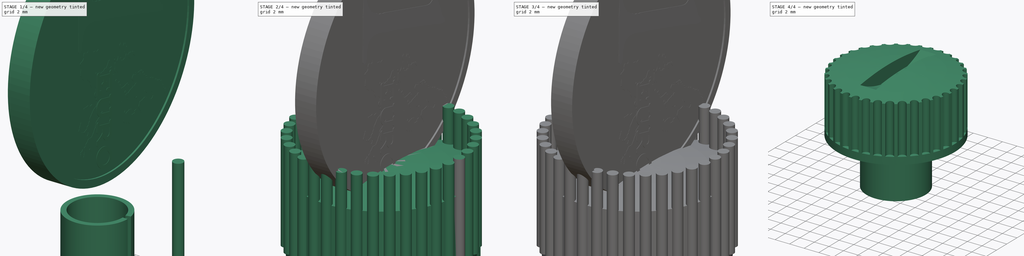
[diagram: build sequence overview — one tinted view per stage of 4, left to right]
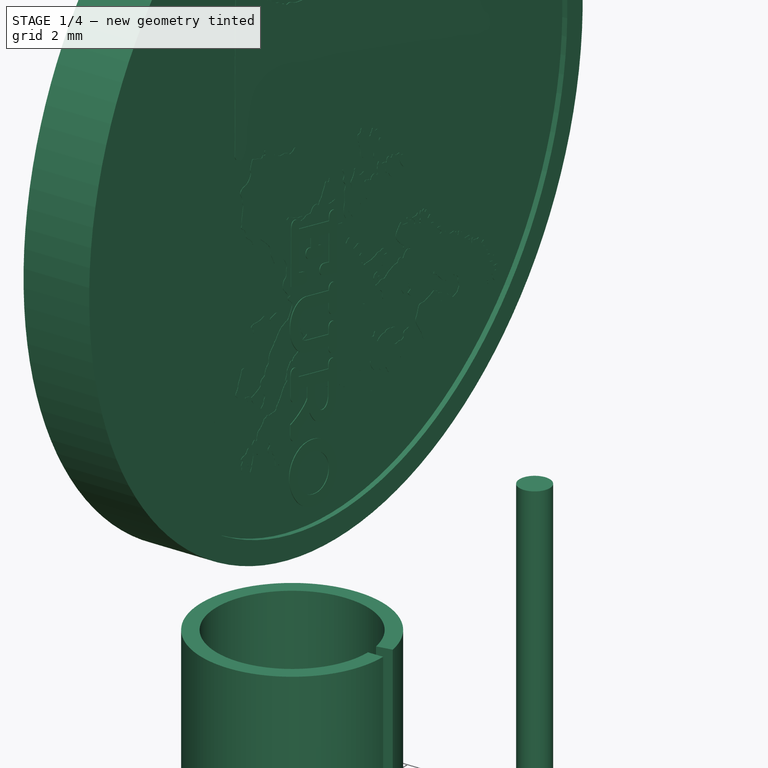
[diagram: stage 1 of 4 — iso view after this stage's code; geometry added in this stage tinted green]
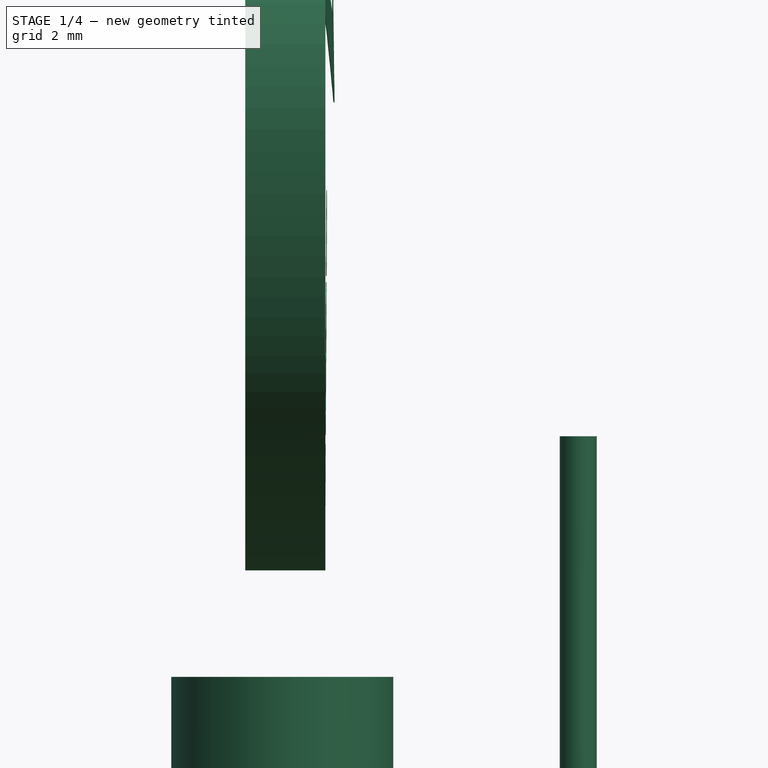
[diagram: stage 1 of 4 — front view after this stage's code; geometry added in this stage tinted green]
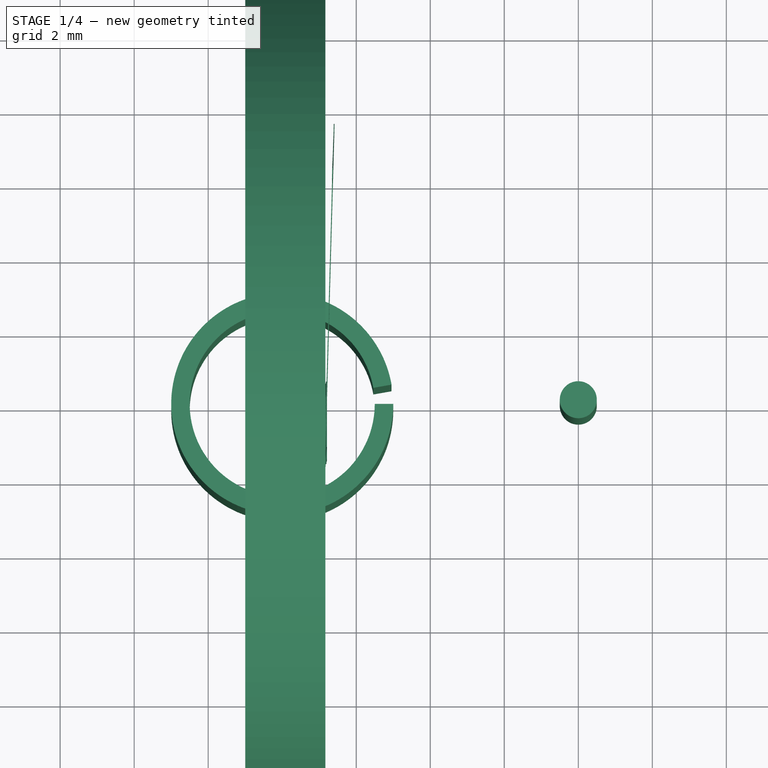
[diagram: stage 1 of 4 — top view after this stage's code; geometry added in this stage tinted green]
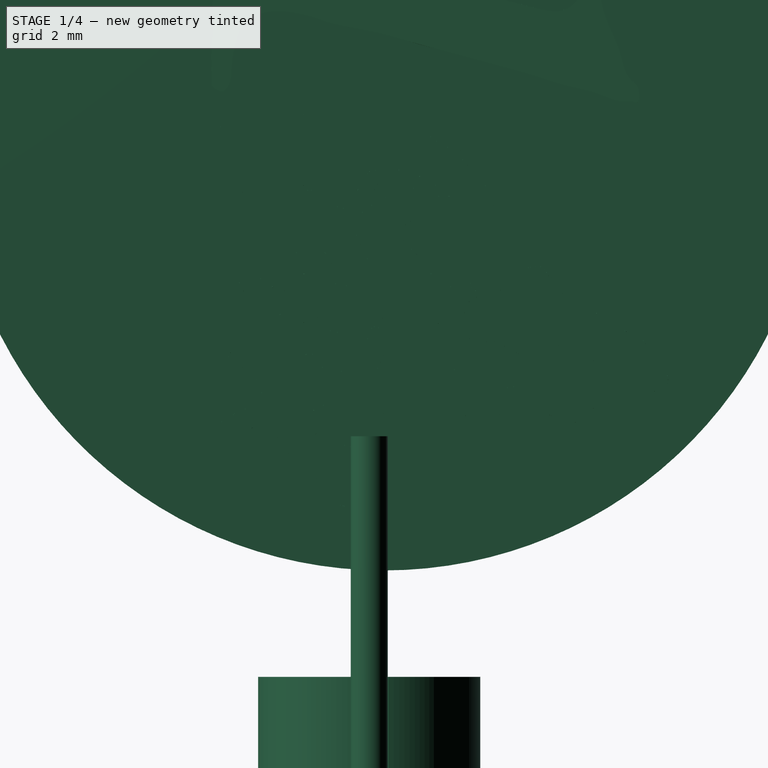
[diagram: stage 1 of 4 — right view after this stage's code; geometry added in this stage tinted green]
FCSTD DOCUMENT  (FreeCAD 0.15R4671 (Git))
Label: PF15_plug
License: All rights reserved
LicenseURL: http://en.wikipedia.org/wiki/All_rights_reserved
objects: Part::Feature×7, Part::Cut×4, Sketcher::SketchObject×3, PartDesign::Revolution×2, Part::Helix×1, Part::Sweep×1, Part::Box×1, Part::Cylinder×1, Part::FeaturePython×1, Part::Compound×1
note: 24 computed .brp shape members not serialized (recipe doc carries the construction recipe); baked Part::Feature solids carry a one-line shape summary decoded from their .brp

FEATURE [Part::Cylinder] Cylinder
  Angle = 360
  Height = 10
  Placement = pos=(8,0,0) rot=(0,0,1;0rad)
  Radius = 0.5
FEATURE [Part::Feature] Cylinder001  label="interior001"
  Placement = pos=(0,0.4,0) rot=(0,0,1;0rad)
  shape: bbox 16.4 x 16.4 x 2 mm, 3 faces (baked)
FEATURE [Part::Feature] Cut003  label="exterior001"
  Placement = pos=(0,0,2.33) rot=(0,0,1;0rad)
  shape: bbox 23.25 x 23.25 x 2.165 mm, 4 faces (baked)
FEATURE [Part::Feature] Cut004  label="middle001"
  Placement = pos=(0,0,2.33) rot=(0,0,1;0rad)
  shape: bbox 21.8 x 21.8 x 2 mm, 4 faces (baked)
FEATURE [Part::Feature] Common  label="text-int001"
  Placement = pos=(0,-0.0586354,2.19918) rot=(0.164408,0.986296,0.013772;0.005308rad)
  shape: bbox 15.13 x 11.59 x 0.3438 mm, 123 faces, 4 solids (baked)
FEATURE [Part::Feature] Common001  label="text-ext001"
  Placement = pos=(0,-0.0586354,2.19918) rot=(0.164452,0.986289,0.013772;0.005317rad)
  shape: bbox 18.23 x 4.666 x 0.1049 mm, 26 faces, 2 solids (baked)
FEATURE [Part::Feature] Common002  label="map-ext001"
  Placement = pos=(0,0,2.1) rot=(0,0,1;0rad)
  shape: bbox 3.332 x 12.09 x 0.01 mm, 138 faces, 4 solids (baked)
FEATURE [Part::Feature] Common003  label="map-int001"
  Placement = pos=(0,0,2.1) rot=(0,0,1;0rad)
  shape: bbox 9.381 x 11.08 x 0.01 mm, 605 faces, 9 solids (baked)
FEATURE [Part::Compound] Compound  label="Euro-coin-ready"
  Links = -> [Cylinder001,Common001,Common003,Common002,Common,Cut003,Cut004]
  Placement = pos=(-1,0,18) rot=(0,1,0;1.5708rad)
FEATURE [Sketcher::SketchObject] Sketch002
  Placement = pos=(0,0,0) rot=(-1,0,0;4.71239rad)
  sketch-geometry (4):
    g0: LineSegment StartX=2.5 StartY=3.5 StartZ=0 EndX=3 EndY=3.5 EndZ=0
    g1: LineSegment StartX=3 StartY=3.5 StartZ=0 EndX=3 EndY=-6.8 EndZ=0
    g2: LineSegment StartX=3 StartY=-6.8 StartZ=0 EndX=2.5 EndY=-6.8 EndZ=0
    g3: LineSegment StartX=2.5 StartY=-6.8 StartZ=0 EndX=2.5 EndY=3.5 EndZ=0
  constraints (12):
    c: Coincident(g0,g1)
    c: Coincident(g1,g2)
    c: Coincident(g2,g3)
    c: Coincident(g3,g0)
    c: Horizontal(g0)
    c: Horizontal(g2)
    c: Vertical(g1)
    c: Vertical(g3)
    c: DistanceX(g0) = 0.5
    c: DistanceY(g1) = -10.3
    c: DistanceX(g-1,g0) = 2.5
    c: DistanceY(g-1,g0) = 3.5
FEATURE [PartDesign::Revolution] Revolution001
  Angle = 350
  Axis = (0,0,1)
  Base = (0,0,0)
  Placement = pos=(0,0,0) rot=(-1,0,0;4.71239rad)
  ReferenceAxis = -> Sketch002 [V_Axis]
  Reversed = true
  Sketch = -> Sketch002
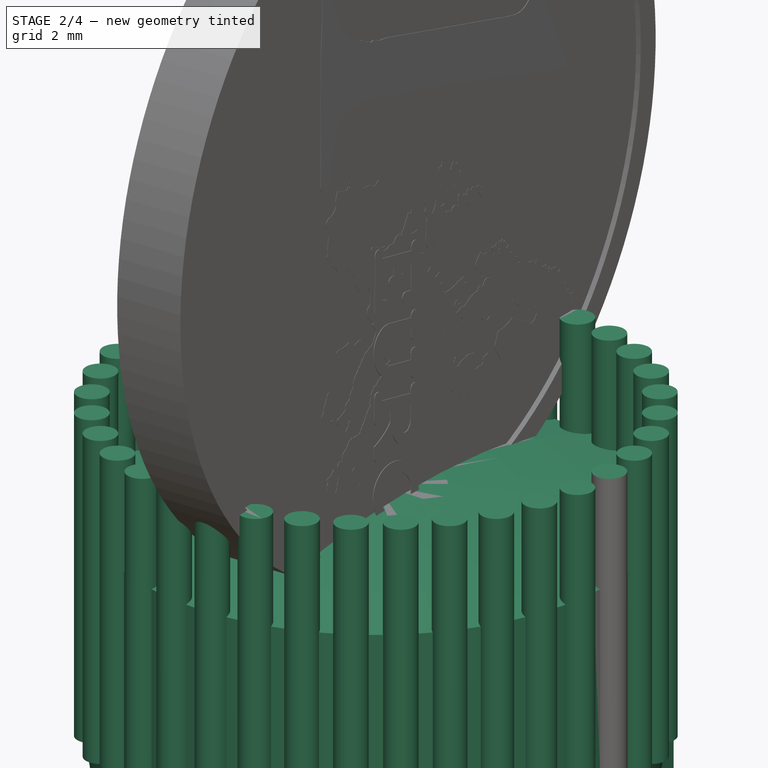
[diagram: stage 2 of 4 — iso view after this stage's code; geometry added in this stage tinted green]
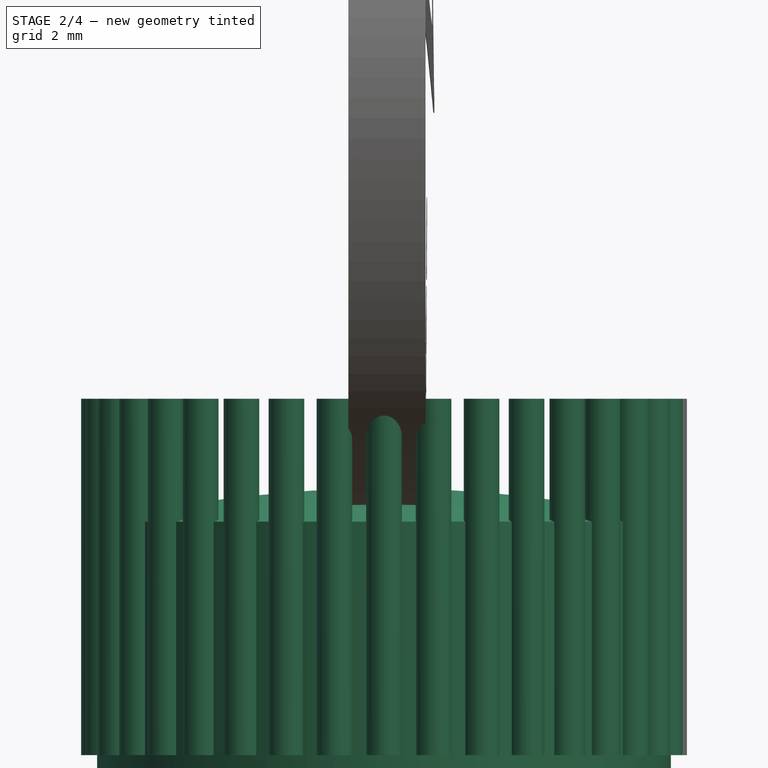
[diagram: stage 2 of 4 — front view after this stage's code; geometry added in this stage tinted green]
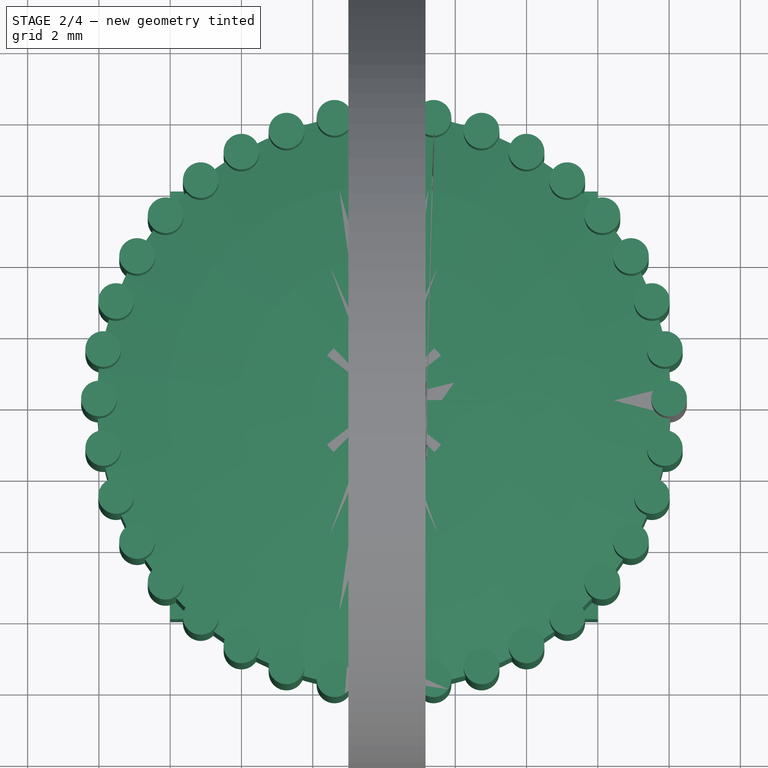
[diagram: stage 2 of 4 — top view after this stage's code; geometry added in this stage tinted green]
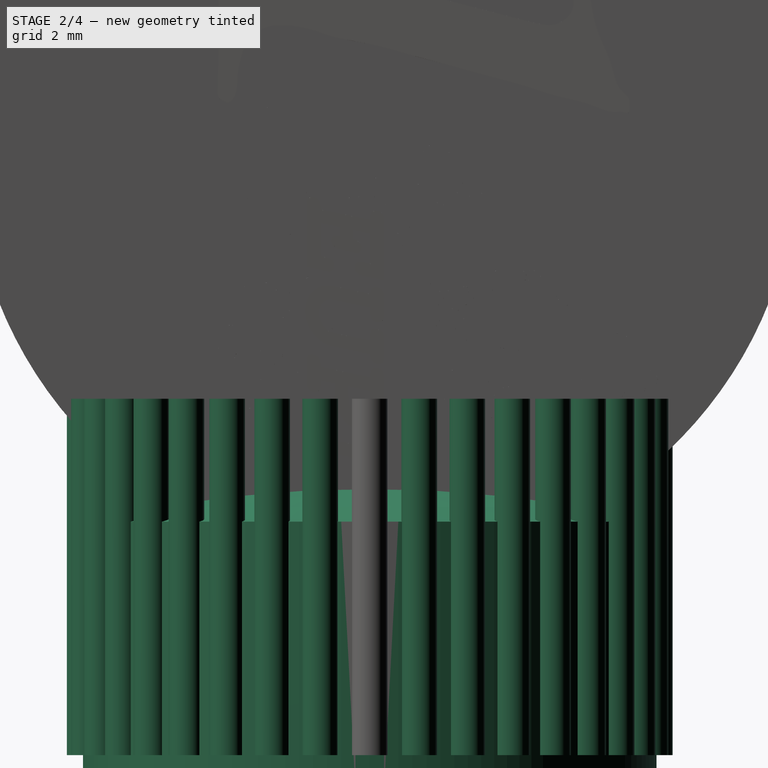
[diagram: stage 2 of 4 — right view after this stage's code; geometry added in this stage tinted green]
FEATURE [Part::Box] Box  label="Cube"
  Height = 5
  Length = 12
  Placement = pos=(-6,-6,-5) rot=(0,0,1;0rad)
  Width = 12
FEATURE [Sketcher::SketchObject] Sketch001
  Placement = pos=(0,0,0) rot=(1,0,0;1.5708rad)
  sketch-geometry (10):
    g0: LineSegment StartX=0 StartY=5.38 StartZ=0 EndX=3.05 EndY=5.38 EndZ=0
    g1: LineSegment StartX=3.05 StartY=5.38 StartZ=0 EndX=3.05 EndY=-6.37 EndZ=0
    g2: LineSegment StartX=3.05 StartY=-6.37 StartZ=0 EndX=4.05 EndY=-6.37 EndZ=0
    g3: LineSegment StartX=4.05 StartY=-6.37 StartZ=0 EndX=4.05 EndY=5.38 EndZ=0
    g4: LineSegment StartX=4.05 StartY=5.38 StartZ=0 EndX=5.5 EndY=5.38 EndZ=0
    g5: LineSegment StartX=5.5 StartY=5.38 StartZ=0 EndX=5.5 EndY=0 EndZ=0
    g6: LineSegment StartX=5.5 StartY=0 StartZ=0 EndX=8.05 EndY=0 EndZ=0
    g7: LineSegment StartX=8.05 StartY=0 StartZ=0 EndX=8.05 EndY=7.55 EndZ=0
    g8: LineSegment StartX=0 StartY=8.48 StartZ=0 EndX=0 EndY=5.38 EndZ=0
    g9: ArcOfCircle CenterX=0 CenterY=-26.8251 CenterZ=0 NormalX=0 NormalY=0 NormalZ=1 Radius=35.3051 StartAngle=1.34076 EndAngle=1.5708
  constraints (32):
    c: PointOnObject(g0,g-2)
    c: Horizontal(g0)
    c: Coincident(g0,g1)
    c: Vertical(g1)
    c: Coincident(g1,g2)
    c: Horizontal(g2)
    c: Coincident(g2,g3)
    c: Vertical(g3)
    c: Coincident(g3,g4)
    c: Horizontal(g4)
    c: Coincident(g4,g5)
    c: Vertical(g5)
    c: Coincident(g5,g6)
    c: Horizontal(g6)
    c: Coincident(g6,g7)
    c: Vertical(g7)
    c: PointOnObject(g8,g-2)
    c: PointOnObject(g6,g-1)
    c: DistanceY(g5) = -5.38
    c: DistanceY(g7) = 7.55
    c: DistanceY(g3) = 11.75
    c: Equal(g1,g3)
    c: DistanceX(g2) = 1
    c: DistanceX(g-1,g4) = 5.5
    c: DistanceX(g-1,g0) = 3.05
    c: Vertical(g8)
    c: Coincident(g8,g0)
    c: DistanceY(g8,g1) = -14.85
    c: DistanceX(g-1,g7) = 8.05
    c: PointOnObject(g9,g-2)
    c: Coincident(g9,g8)
    c: Coincident(g9,g7)
FEATURE [PartDesign::Revolution] Revolution
  Angle = 360
  Axis = (0,0,1)
  Base = (0,0,0)
  Placement = pos=(0,0,0) rot=(1,0,0;1.5708rad)
  ReferenceAxis = -> Sketch001 [V_Axis]
  Reversed = true
  Sketch = -> Sketch001
FEATURE [Part::FeaturePython] Array  # Draft array (typed FeaturePython)
  Angle = 360
  ArrayType = 1
  Axis = (0,0,1)
  Base = -> Cylinder
  Center = (0,0,0)
  Fuse = false
  IntervalAxis = (0,0,0)
  IntervalX = (1,0,0)
  IntervalY = (0,1,0)
  IntervalZ = (0,0,0)
  NumberPolar = 36
  NumberX = 2
  NumberY = 2
  NumberZ = 1
  Placement = pos=(0,0,1) rot=(0,0,1;0rad)
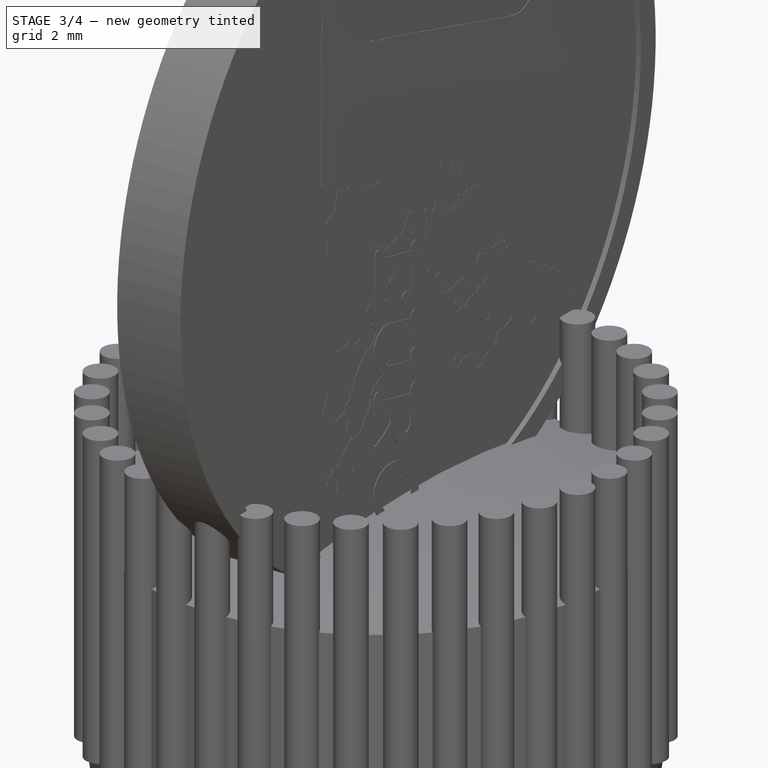
[diagram: stage 3 of 4 — iso view after this stage's code; geometry added in this stage tinted green]
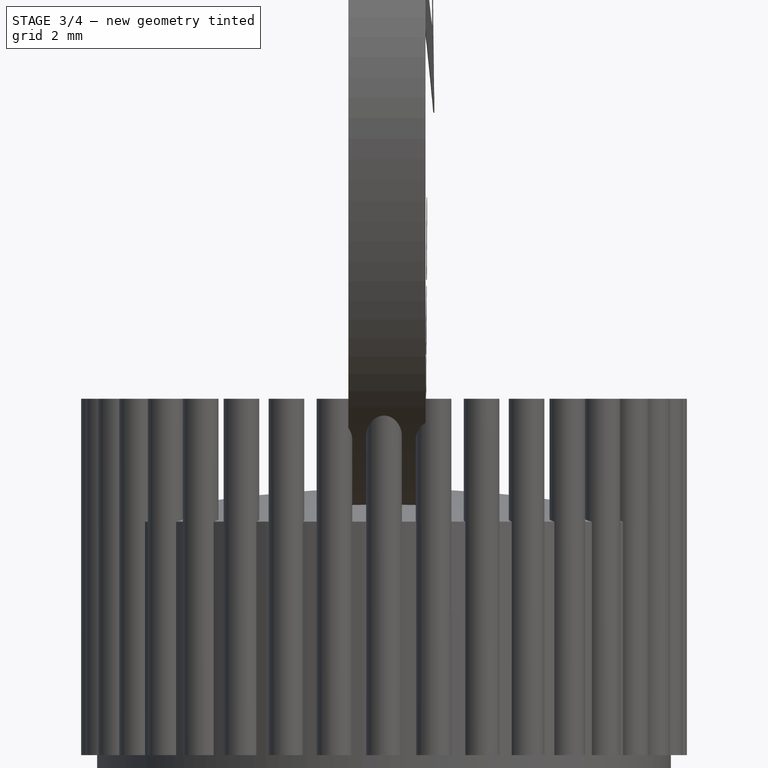
[diagram: stage 3 of 4 — front view after this stage's code; geometry added in this stage tinted green]
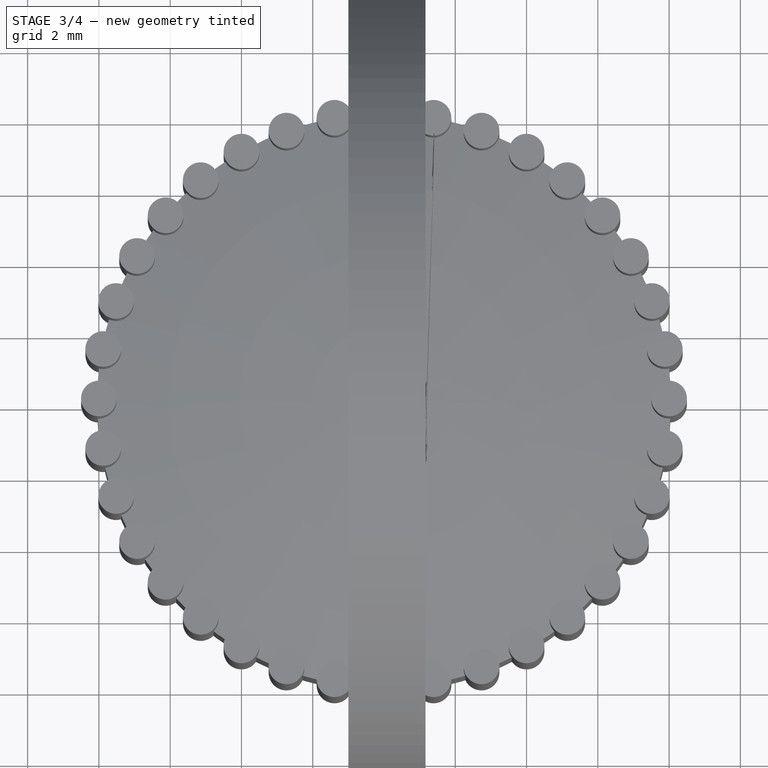
[diagram: stage 3 of 4 — top view after this stage's code; geometry added in this stage tinted green]
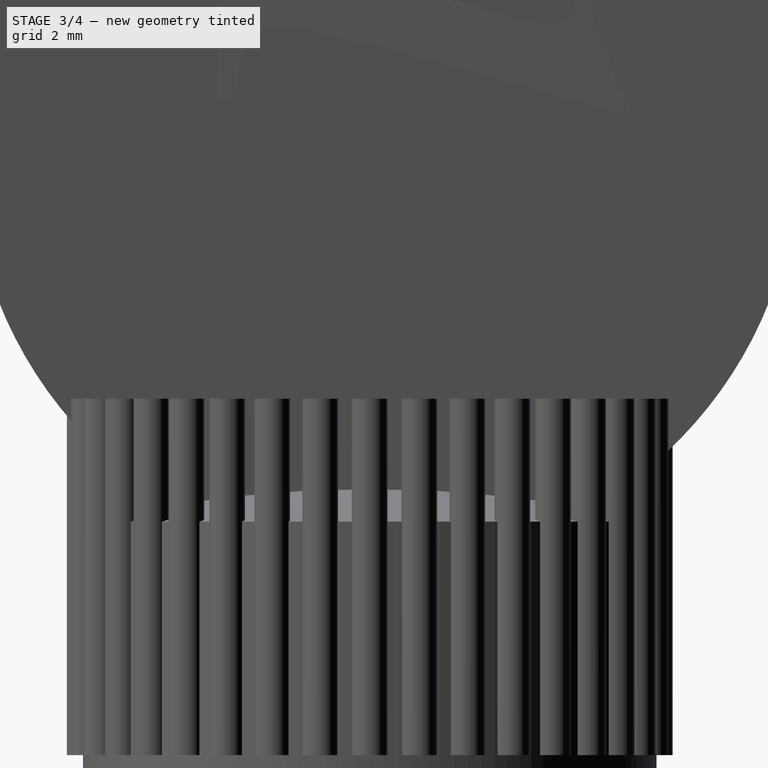
[diagram: stage 3 of 4 — right view after this stage's code; geometry added in this stage tinted green]
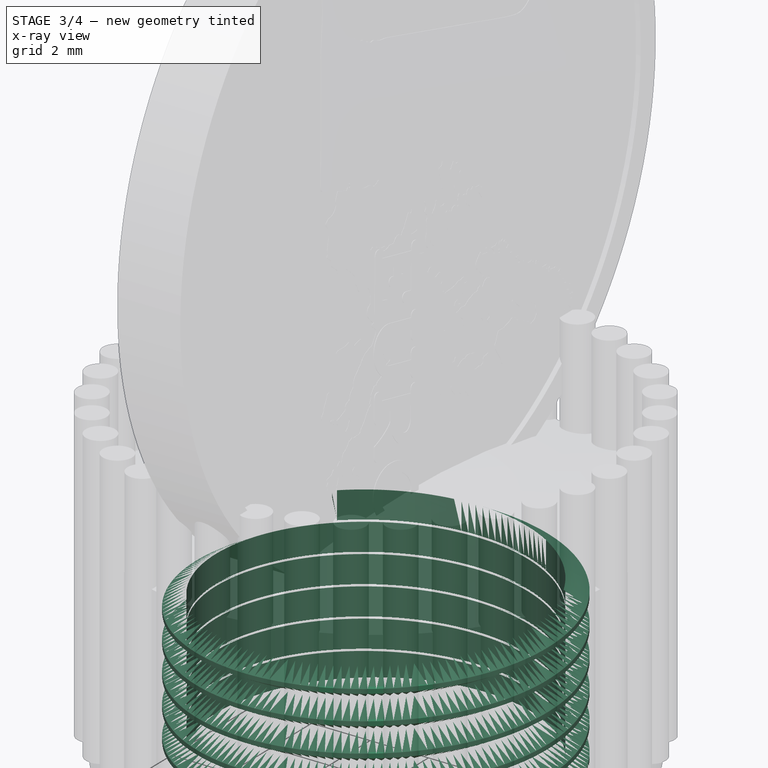
[diagram: stage 3 of 4 — x-ray composite at the iso view; earlier geometry ghosted, this stage's added geometry solid]
FEATURE [Part::Helix] Helix
  Angle = 0
  Height = 5.38
  LocalCoord = 0
  Pitch = 1
  Radius = 5.5
  Style = 1
FEATURE [Sketcher::SketchObject] Sketch
  Placement = pos=(0,0,0) rot=(1,0,0;1.5708rad)
  sketch-geometry (5):
    g0: LineSegment StartX=5.32 StartY=0.467654 StartZ=0 EndX=5.32 EndY=-0.467654 EndZ=0
    g1: LineSegment StartX=5.32 StartY=-0.467654 StartZ=0 EndX=6 EndY=-0.0750555 EndZ=0
    g2: LineSegment StartX=6 StartY=-0.0750555 StartZ=0 EndX=6 EndY=0.0750555 EndZ=0
    g3: LineSegment StartX=6 StartY=0.0750555 StartZ=0 EndX=5.32 EndY=0.467654 EndZ=0
    g4: LineSegment [constr] StartX=6.13 StartY=0 StartZ=0 EndX=5.05 EndY=0.623538 EndZ=0
  constraints (16):
    c: Vertical(g0)
    c: Coincident(g0,g1)
    c: Coincident(g1,g2)
    c: Coincident(g2,g3)
    c: Coincident(g3,g0)
    c: Angle(g-1,g3) = 2.61799
    c: Vertical(g2)
    c: Symmetric(g2,g1,g-1)
    c: Symmetric(g0,g0,g-1)
    c: PointOnObject(g4,g-1)
    c: PointOnObject(g0,g4)
    c: PointOnObject(g2,g4)
    c: DistanceX(g-1,g4) = 5.05
    c: DistanceX(g-1,g0) = 5.32
    c: DistanceX(g-1,g2) = 6
    c: DistanceX(g-1,g4) = 6.13
FEATURE [Part::Sweep] Sweep
  Frenet = true
  Sections = -> [Sketch]
  Solid = true
  Spine = -> Helix
  Transition = 1
FEATURE [Part::Cut] Cut
  Base = -> Sweep
  Tool = -> Box
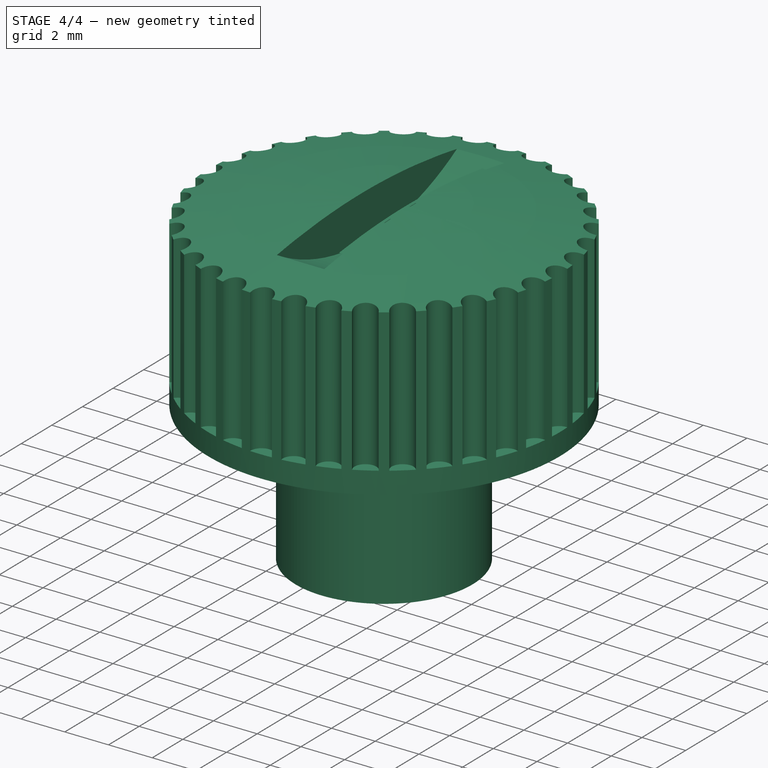
[diagram: stage 4 of 4 — iso view after this stage's code; geometry added in this stage tinted green]
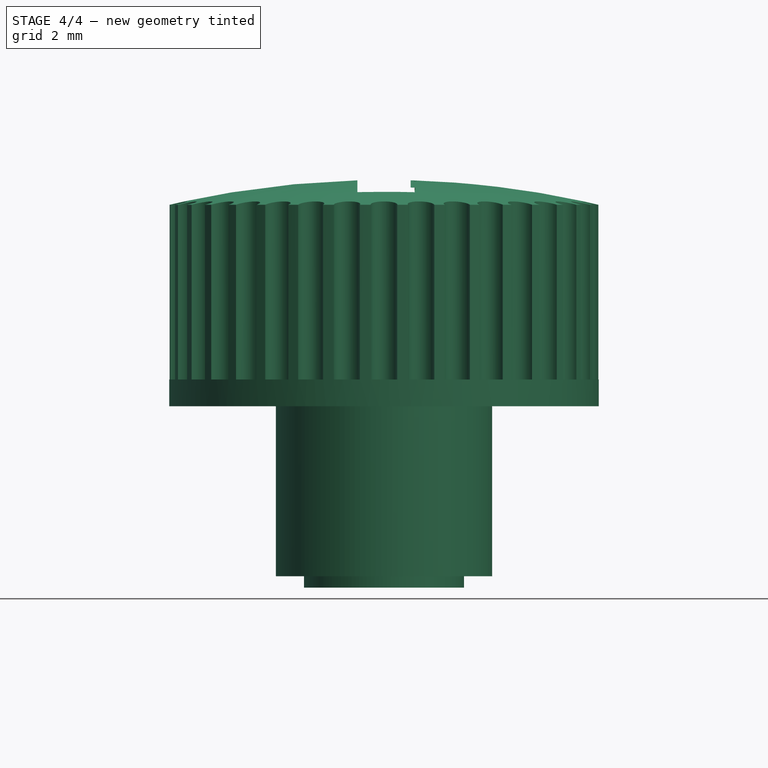
[diagram: stage 4 of 4 — front view after this stage's code; geometry added in this stage tinted green]
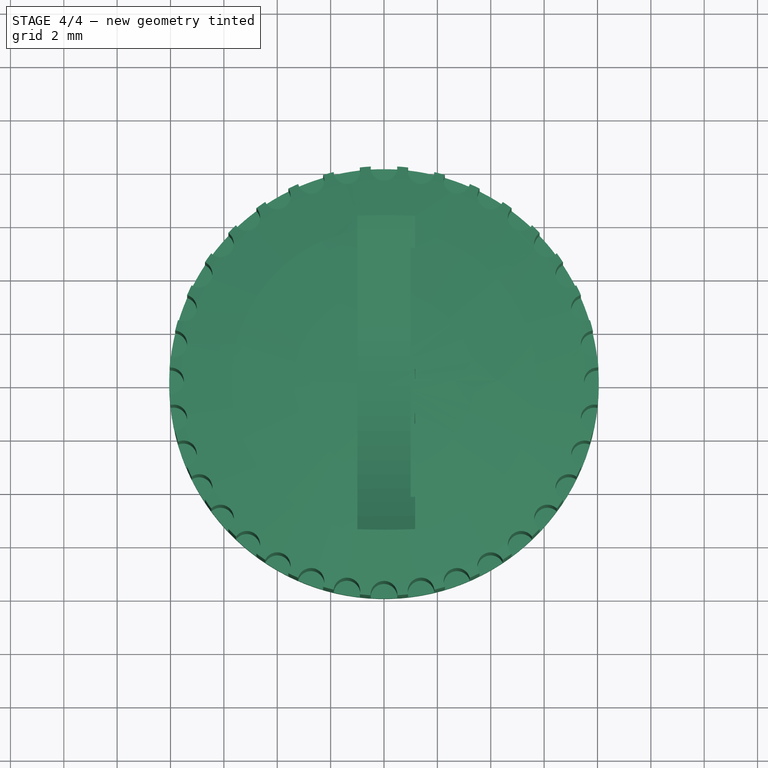
[diagram: stage 4 of 4 — top view after this stage's code; geometry added in this stage tinted green]
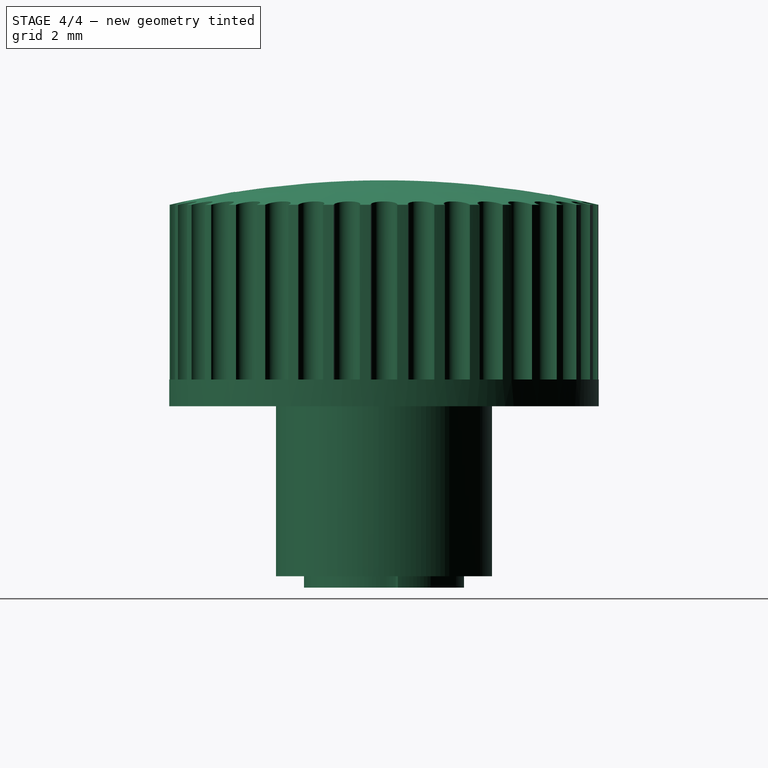
[diagram: stage 4 of 4 — right view after this stage's code; geometry added in this stage tinted green]
FEATURE [Part::Cut] Cut001
  Base = -> Revolution
  Tool = -> Cut
FEATURE [Part::Cut] Cut002
  Base = -> Cut001
  Tool = -> Array
FEATURE [Part::Cut] Cut005
  Base = -> Cut002
  Tool = -> Compound
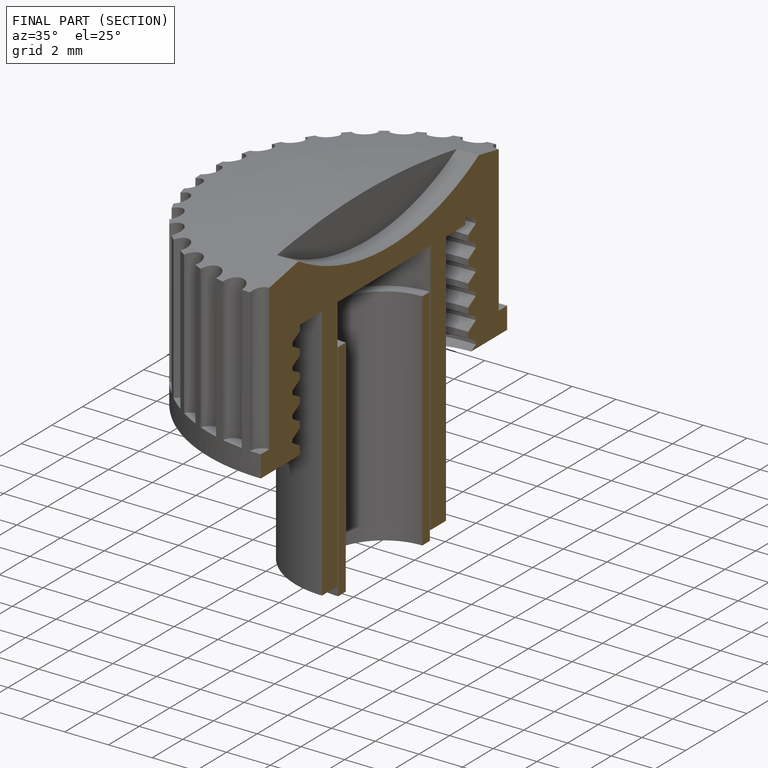
[diagram: finished part — half-section view (interior)]
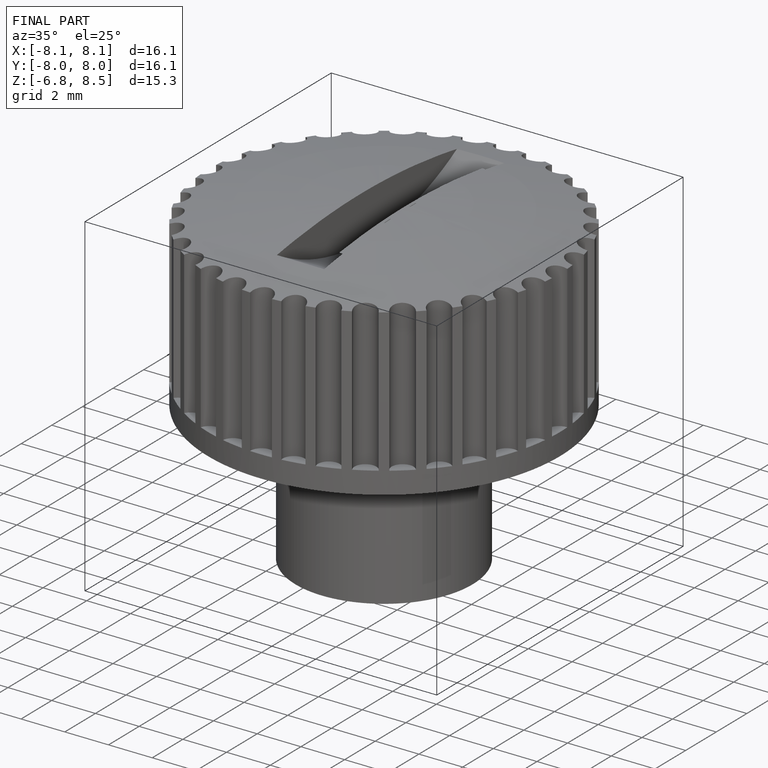
[diagram: finished part — iso view with bounding-box wireframe]
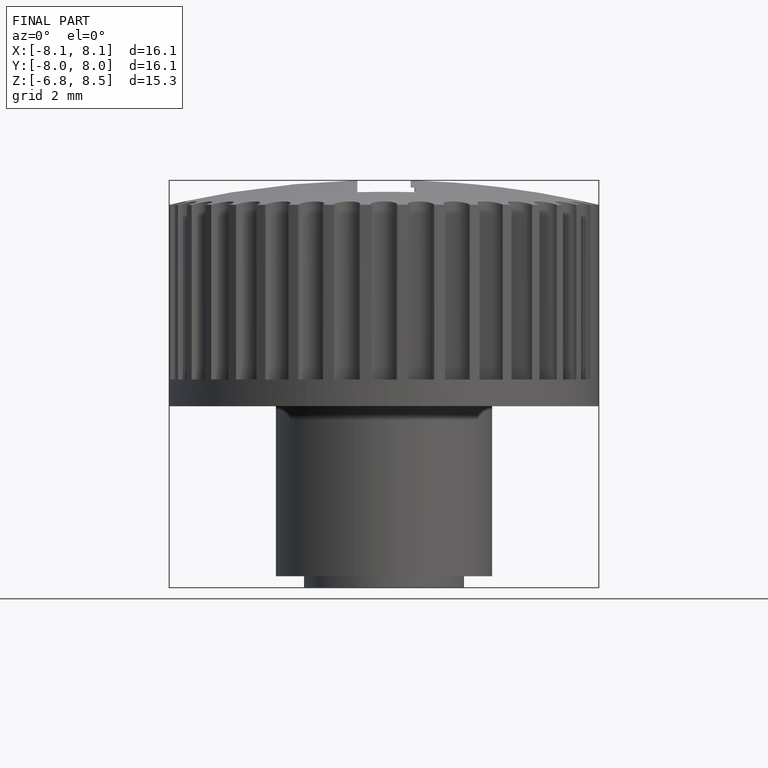
[diagram: finished part — front view with bounding-box wireframe]
